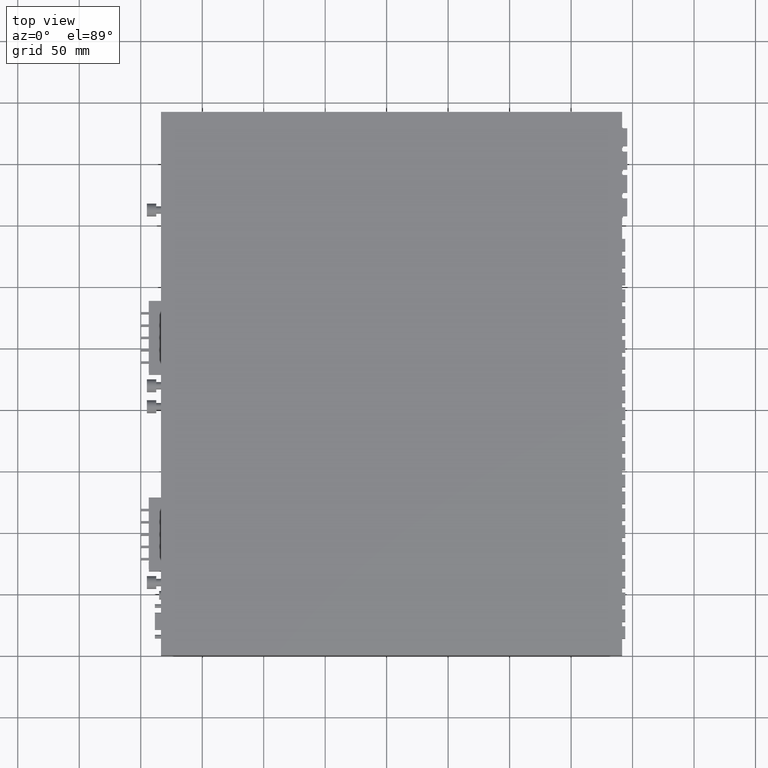
[diagram: clean part render]
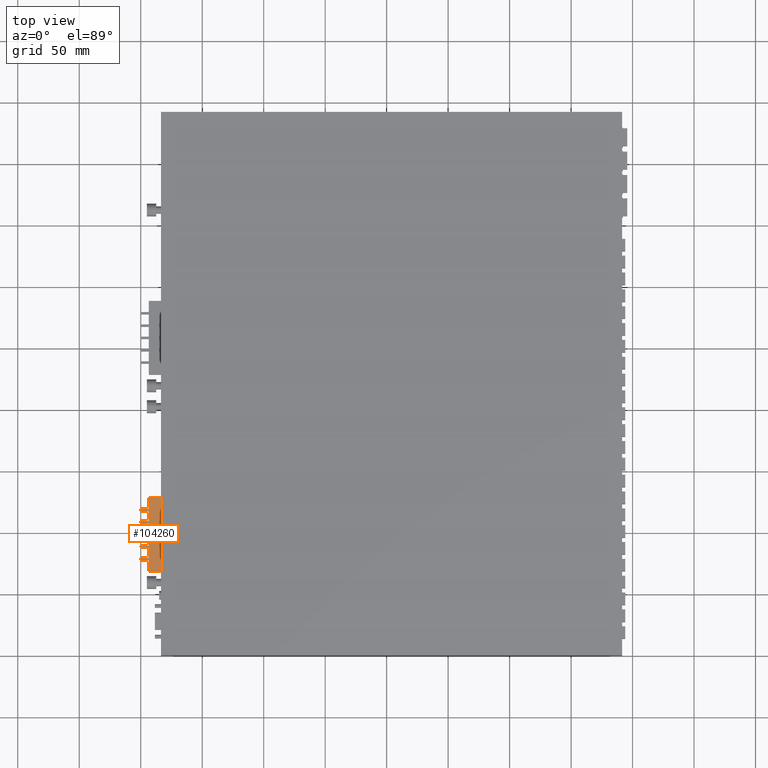
[diagram: same view with one face highlighted and labeled with its STEP entity id]
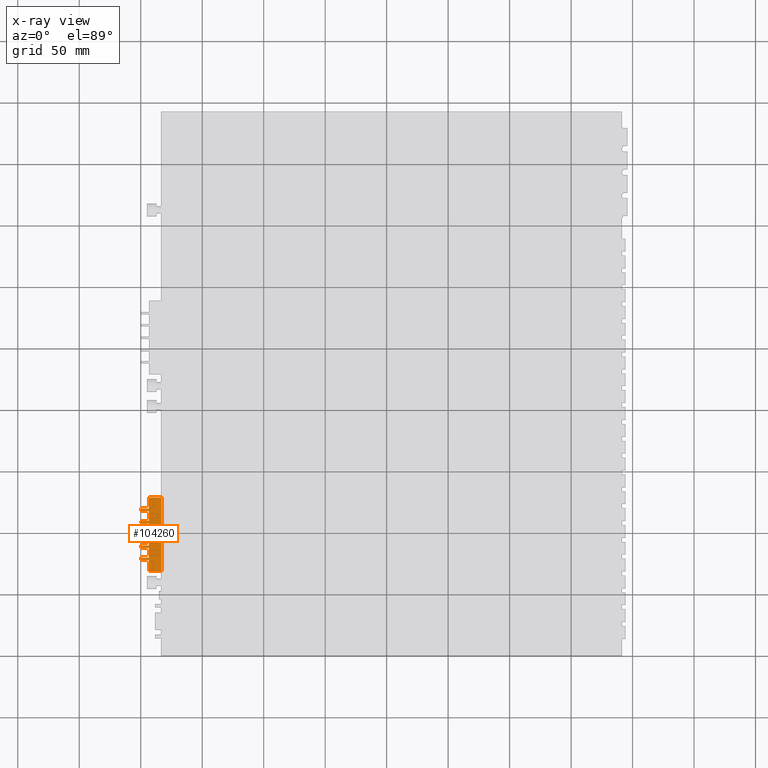
[diagram: x-ray of the same camera — body ghosted, the highlighted face saturated]
A machine part, top view. The second image highlights one B-rep face of the part: STEP entity #104260.
The next image is the same camera in x-ray: the body ghosted, the highlighted face saturated — about 0% of this face is hidden behind the body in this view.
In plain terms, the highlighted planar face has unit normal (-0, 0, -1).
Its self-contained STEP definition (entity closure, byte-faithful):
#35920=CARTESIAN_POINT('',(-122.993986957435,-15.0963677763395,
-10.0000000000197));
#35930=VERTEX_POINT('',#35920);
#35960=CARTESIAN_POINT('',(0.,-15.0963677763395,-10.0000000000197));
#35970=DIRECTION('',(1.,1.38777878078145E-16,-1.32801947981286E-16));
#35980=VECTOR('',#35970,1.);
#35990=LINE('',#35960,#35980);
#36000=CARTESIAN_POINT('',(-131.193986957435,-15.0963677763395,
-10.0000000000197));
#36010=VERTEX_POINT('',#36000);
#36020=EDGE_CURVE('',#36010,#35930,#35990,.T.);
#62840=CARTESIAN_POINT('',(-132.993986957435,-15.0963677763395,
-10.0000000000197));
#62850=VERTEX_POINT('',#62840);
#62880=CARTESIAN_POINT('',(0.,-15.0963677763395,-10.0000000000197));
#62890=DIRECTION('',(1.,1.38777878078145E-16,-1.32801947981286E-16));
#62900=VECTOR('',#62890,1.);
#62910=LINE('',#62880,#62900);
#62920=CARTESIAN_POINT('',(-141.193986957435,-15.0963677763395,
-10.0000000000197));
#62930=VERTEX_POINT('',#62920);
#62940=EDGE_CURVE('',#62930,#62850,#62910,.T.);
#63720=CARTESIAN_POINT('',(-131.193986957435,-15.0963677763395,0.));
#63730=DIRECTION('',(-2.37936704101093E-16,6.22687289771727E-17,-1.));
#63740=VECTOR('',#63730,1.);
#63750=LINE('',#63720,#63740);
#63760=CARTESIAN_POINT('',(-131.193986957435,-15.0963677763395,
-16.5000000000197));
#63770=VERTEX_POINT('',#63760);
#63780=EDGE_CURVE('',#36010,#63770,#63750,.T.);
#64040=CARTESIAN_POINT('',(0.,-15.0963677763395,-16.5000000000198));
#64050=DIRECTION('',(-1.,-1.38777878078145E-16,1.32801947981286E-16));
#64060=VECTOR('',#64050,1.);
#64070=LINE('',#64040,#64060);
#64080=CARTESIAN_POINT('',(-132.993986957435,-15.0963677763395,
-16.5000000000197));
#64090=VERTEX_POINT('',#64080);
#64100=EDGE_CURVE('',#63770,#64090,#64070,.T.);
#65050=CARTESIAN_POINT('',(-152.093986957435,-15.0963677763395,
-9.90000000001973));
#65060=VERTEX_POINT('',#65050);
#65110=CARTESIAN_POINT('',(-152.093986957435,-15.0963677763395,0.));
#65120=DIRECTION('',(-1.32801947981286E-16,6.22687289771727E-17,-1.));
#65130=VECTOR('',#65120,1.);
#65140=LINE('',#65110,#65130);
#65150=CARTESIAN_POINT('',(-152.093986957435,-15.0963677763395,
0.199999999980264));
#65160=VERTEX_POINT('',#65150);
#65170=EDGE_CURVE('',#65160,#65060,#65140,.T.);
#67930=CARTESIAN_POINT('',(-92.0939869574352,-15.0963677763395,0.));
#67940=DIRECTION('',(-1.32801947981286E-16,6.22687289771727E-17,-1.));
#67950=VECTOR('',#67940,1.);
#67960=LINE('',#67930,#67950);
#67970=CARTESIAN_POINT('',(-92.0939869574352,-15.0963677763395,
0.199999999980264));
#67980=VERTEX_POINT('',#67970);
#67990=CARTESIAN_POINT('',(-92.0939869574352,-15.0963677763395,
-10.0000000000197));
#68000=VERTEX_POINT('',#67990);
#68010=EDGE_CURVE('',#67980,#68000,#67960,.T.);
#68610=CARTESIAN_POINT('',(-141.193986957435,-15.0963677763395,0.));
#68620=DIRECTION('',(-2.37936704101093E-16,6.22687289771727E-17,-1.));
#68630=VECTOR('',#68620,1.);
#68640=LINE('',#68610,#68630);
#68650=CARTESIAN_POINT('',(-141.193986957435,-15.0963677763395,
-16.5000000000197));
#68660=VERTEX_POINT('',#68650);
#68670=EDGE_CURVE('',#62930,#68660,#68640,.T.);
#68930=CARTESIAN_POINT('',(0.,-15.0963677763395,-16.5000000000198));
#68940=DIRECTION('',(-1.,-1.38777878078145E-16,1.32801947981286E-16));
#68950=VECTOR('',#68940,1.);
#68960=LINE('',#68930,#68950);
#68970=CARTESIAN_POINT('',(-142.993986957435,-15.0963677763395,
-16.5000000000197));
#68980=VERTEX_POINT('',#68970);
#68990=EDGE_CURVE('',#68660,#68980,#68960,.T.);
#69230=CARTESIAN_POINT('',(-142.993986957435,-15.0963677763395,0.));
#69240=DIRECTION('',(2.37936704101093E-16,-6.22687289771727E-17,1.));
#69250=VECTOR('',#69240,1.);
#69260=LINE('',#69230,#69250);
#69270=CARTESIAN_POINT('',(-142.993986957435,-15.0963677763395,
-9.90000000001973));
#69280=VERTEX_POINT('',#69270);
#69290=EDGE_CURVE('',#68980,#69280,#69260,.T.);
#69540=CARTESIAN_POINT('',(-132.993986957435,-15.0963677763395,0.));
#69550=DIRECTION('',(2.37936704101093E-16,-6.22687289771727E-17,1.));
#69560=VECTOR('',#69550,1.);
#69570=LINE('',#69540,#69560);
#69580=EDGE_CURVE('',#64090,#62850,#69570,.T.);
#69760=CARTESIAN_POINT('',(-102.993986957435,-15.0963677763395,0.));
#69770=DIRECTION('',(2.37936704101093E-16,-6.22687289771727E-17,1.));
#69780=VECTOR('',#69770,1.);
#69790=LINE('',#69760,#69780);
#69800=CARTESIAN_POINT('',(-102.993986957435,-15.0963677763395,
-16.5000000000197));
#69810=VERTEX_POINT('',#69800);
#69820=CARTESIAN_POINT('',(-102.993986957435,-15.0963677763395,
-10.0000000000197));
#69830=VERTEX_POINT('',#69820);
#69840=EDGE_CURVE('',#69810,#69830,#69790,.T.);
#70450=CARTESIAN_POINT('',(-122.993986957435,-15.0963677763395,0.));
#70460=DIRECTION('',(2.37936704101093E-16,-6.22687289771727E-17,1.));
#70470=VECTOR('',#70460,1.);
#70480=LINE('',#70450,#70470);
#70490=CARTESIAN_POINT('',(-122.993986957435,-15.0963677763395,
-16.5000000000197));
#70500=VERTEX_POINT('',#70490);
#70510=EDGE_CURVE('',#70500,#35930,#70480,.T.);
#85090=CARTESIAN_POINT('',(-111.193986957435,-15.0963677763395,0.));
#85100=DIRECTION('',(-2.37936704101093E-16,6.22687289771727E-17,-1.));
#85110=VECTOR('',#85100,1.);
#85120=LINE('',#85090,#85110);
#85130=CARTESIAN_POINT('',(-111.193986957435,-15.0963677763395,
-10.0000000000197));
#85140=VERTEX_POINT('',#85130);
#85150=CARTESIAN_POINT('',(-111.193986957435,-15.0963677763395,
-16.5000000000197));
#85160=VERTEX_POINT('',#85150);
#85170=EDGE_CURVE('',#85140,#85160,#85120,.T.);
#96040=CARTESIAN_POINT('',(-121.193986957435,-15.0963677763395,0.));
#96050=DIRECTION('',(-2.37936704101093E-16,6.22687289771727E-17,-1.));
#96060=VECTOR('',#96050,1.);
#96070=LINE('',#96040,#96060);
#96080=CARTESIAN_POINT('',(-121.193986957435,-15.0963677763395,
-10.0000000000197));
#96090=VERTEX_POINT('',#96080);
#96100=CARTESIAN_POINT('',(-121.193986957435,-15.0963677763395,
-16.5000000000197));
#96110=VERTEX_POINT('',#96100);
#96120=EDGE_CURVE('',#96090,#96110,#96070,.T.);
#100330=CARTESIAN_POINT('',(0.,-15.0963677763395,-16.5000000000198));
#100340=DIRECTION('',(-1.,-1.38777878078145E-16,1.32801947981286E-16));
#100350=VECTOR('',#100340,1.);
#100360=LINE('',#100330,#100350);
#100370=CARTESIAN_POINT('',(-112.993986957435,-15.0963677763395,
-16.5000000000197));
#100380=VERTEX_POINT('',#100370);
#100390=EDGE_CURVE('',#85160,#100380,#100360,.T.);
#103440=CARTESIAN_POINT('',(-92.0939869574352,-15.0963677763395,
-1.97272753688083E-11));
#103450=DIRECTION('',(1.38777878078145E-16,-1.,-6.22687289771728E-17));
#103460=DIRECTION('',(1.,1.38777878078145E-16,0.));
#103470=AXIS2_PLACEMENT_3D('',#103440,#103450,#103460);
#103480=PLANE('',#103470);
#103490=ORIENTED_EDGE('',*,*,#68010,.T.);
#103500=CARTESIAN_POINT('',(0.,-15.0963677763395,0.199999999980264));
#103510=DIRECTION('',(-1.,-1.38777878078145E-16,0.));
#103520=VECTOR('',#103510,1.);
#103530=LINE('',#103500,#103520);
#103540=EDGE_CURVE('',#67980,#65160,#103530,.T.);
#103550=ORIENTED_EDGE('',*,*,#103540,.F.);
#103560=ORIENTED_EDGE('',*,*,#65170,.F.);
#103570=CARTESIAN_POINT('',(0.,-15.0963677763395,-9.90000000001973));
#103580=DIRECTION('',(-1.,-1.38777878078145E-16,0.));
#103590=VECTOR('',#103580,1.);
#103600=LINE('',#103570,#103590);
#103610=EDGE_CURVE('',#69280,#65060,#103600,.T.);
#103620=ORIENTED_EDGE('',*,*,#103610,.T.);
#103630=ORIENTED_EDGE('',*,*,#69290,.T.);
#103640=ORIENTED_EDGE('',*,*,#68990,.T.);
#103650=ORIENTED_EDGE('',*,*,#68670,.T.);
#103660=ORIENTED_EDGE('',*,*,#62940,.F.);
#103670=ORIENTED_EDGE('',*,*,#69580,.T.);
#103680=ORIENTED_EDGE('',*,*,#64100,.T.);
#103690=ORIENTED_EDGE('',*,*,#63780,.T.);
#103700=ORIENTED_EDGE('',*,*,#36020,.F.);
#103710=ORIENTED_EDGE('',*,*,#70510,.T.);
#103720=CARTESIAN_POINT('',(0.,-15.0963677763395,-16.5000000000198));
#103730=DIRECTION('',(-1.,-1.38777878078145E-16,1.32801947981286E-16));
#103740=VECTOR('',#103730,1.);
#103750=LINE('',#103720,#103740);
#103760=EDGE_CURVE('',#96110,#70500,#103750,.T.);
#103770=ORIENTED_EDGE('',*,*,#103760,.T.);
#103780=ORIENTED_EDGE('',*,*,#96120,.T.);
#103790=CARTESIAN_POINT('',(0.,-15.0963677763395,-10.0000000000197));
#103800=DIRECTION('',(1.,1.38777878078145E-16,-1.32801947981286E-16));
#103810=VECTOR('',#103800,1.);
#103820=LINE('',#103790,#103810);
#103830=CARTESIAN_POINT('',(-112.993986957435,-15.0963677763395,
-10.0000000000197));
#103840=VERTEX_POINT('',#103830);
#103850=EDGE_CURVE('',#96090,#103840,#103820,.T.);
#103860=ORIENTED_EDGE('',*,*,#103850,.F.);
#103870=CARTESIAN_POINT('',(-112.993986957435,-15.0963677763395,0.));
#103880=DIRECTION('',(2.37936704101093E-16,-6.22687289771727E-17,1.));
#103890=VECTOR('',#103880,1.);
#103900=LINE('',#103870,#103890);
#103910=EDGE_CURVE('',#100380,#103840,#103900,.T.);
#103920=ORIENTED_EDGE('',*,*,#103910,.T.);
#103930=ORIENTED_EDGE('',*,*,#100390,.T.);
#103940=ORIENTED_EDGE('',*,*,#85170,.T.);
#103950=CARTESIAN_POINT('',(0.,-15.0963677763395,-10.0000000000197));
#103960=DIRECTION('',(1.,1.38777878078145E-16,-1.32801947981286E-16));
#103970=VECTOR('',#103960,1.);
#103980=LINE('',#103950,#103970);
#103990=EDGE_CURVE('',#85140,#69830,#103980,.T.);
#104000=ORIENTED_EDGE('',*,*,#103990,.F.);
#104010=ORIENTED_EDGE('',*,*,#69840,.T.);
#104020=CARTESIAN_POINT('',(0.,-15.0963677763395,-16.5000000000198));
#104030=DIRECTION('',(-1.,-1.38777878078145E-16,1.32801947981286E-16));
#104040=VECTOR('',#104030,1.);
#104050=LINE('',#104020,#104040);
#104060=CARTESIAN_POINT('',(-101.193986957435,-15.0963677763395,
-16.5000000000197));
#104070=VERTEX_POINT('',#104060);
#104080=EDGE_CURVE('',#104070,#69810,#104050,.T.);
#104090=ORIENTED_EDGE('',*,*,#104080,.T.);
#104100=CARTESIAN_POINT('',(-101.193986957435,-15.0963677763395,0.));
#104110=DIRECTION('',(-2.37936704101093E-16,6.22687289771727E-17,-1.));
#104120=VECTOR('',#104110,1.);
#104130=LINE('',#104100,#104120);
#104140=CARTESIAN_POINT('',(-101.193986957435,-15.0963677763395,
-10.0000000000197));
#104150=VERTEX_POINT('',#104140);
#104160=EDGE_CURVE('',#104150,#104070,#104130,.T.);
#104170=ORIENTED_EDGE('',*,*,#104160,.T.);
#104180=CARTESIAN_POINT('',(0.,-15.0963677763395,-10.0000000000197));
#104190=DIRECTION('',(1.,1.38777878078145E-16,-1.32801947981286E-16));
#104200=VECTOR('',#104190,1.);
#104210=LINE('',#104180,#104200);
#104220=EDGE_CURVE('',#104150,#68000,#104210,.T.);
#104230=ORIENTED_EDGE('',*,*,#104220,.F.);
#104240=EDGE_LOOP('',(#104230,#104170,#104090,#104010,#104000,#103940,
#103930,#103920,#103860,#103780,#103770,#103710,#103700,#103690,#103680,
#103670,#103660,#103650,#103640,#103630,#103620,#103560,#103550,#103490)
);
#104250=FACE_OUTER_BOUND('',#104240,.T.);
#104260=ADVANCED_FACE('',(#104250),#103480,.F.);